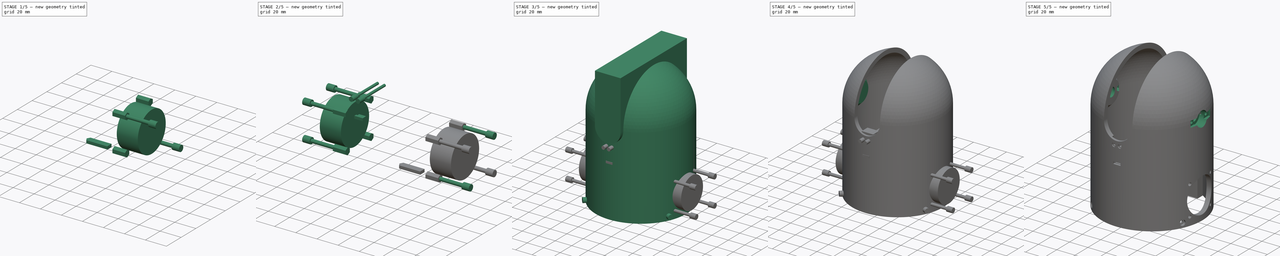
[diagram: build sequence overview — one tinted view per stage of 5, left to right]
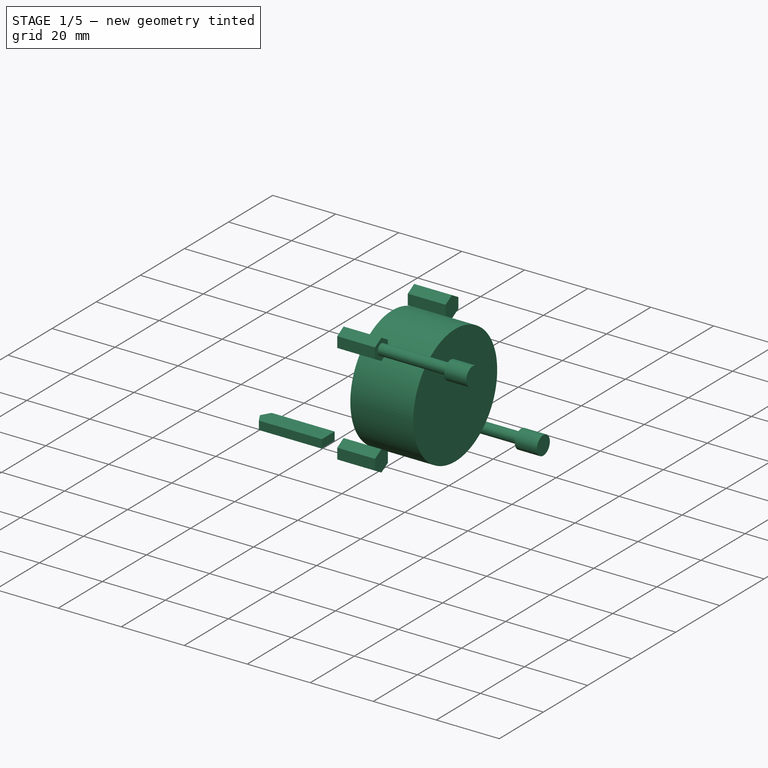
[diagram: stage 1 of 5 — iso view after this stage's code; geometry added in this stage tinted green]
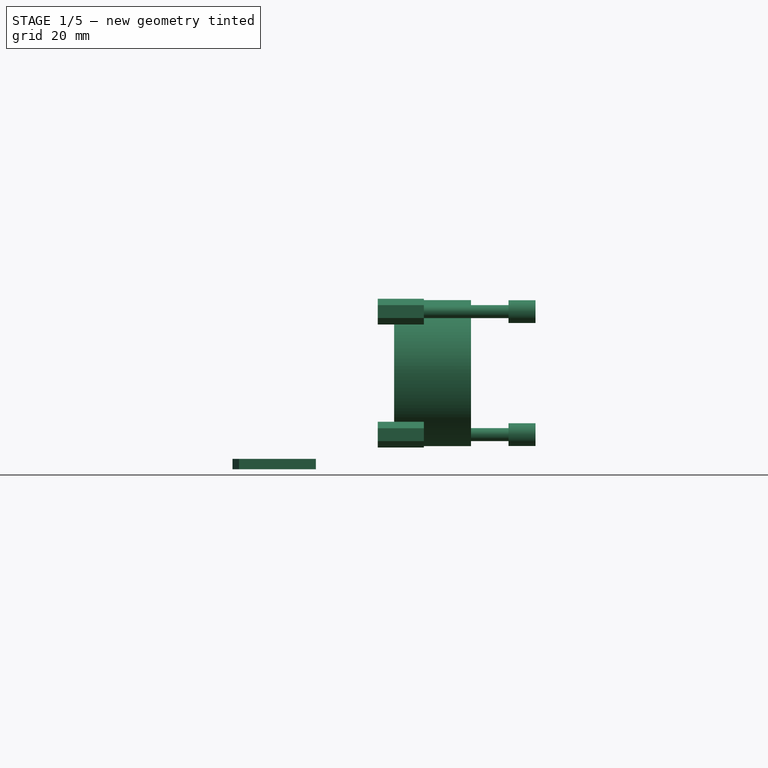
[diagram: stage 1 of 5 — front view after this stage's code; geometry added in this stage tinted green]
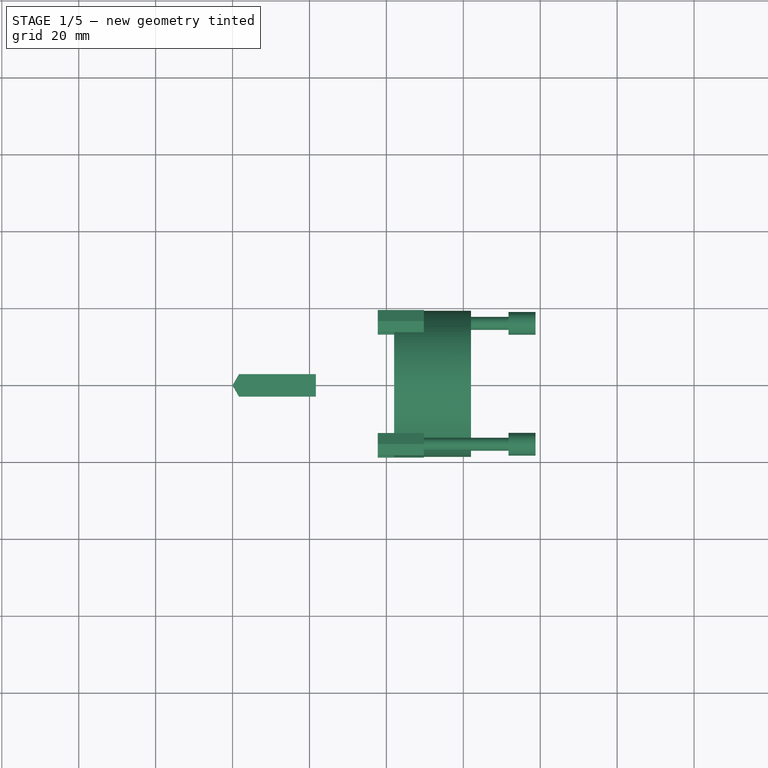
[diagram: stage 1 of 5 — top view after this stage's code; geometry added in this stage tinted green]
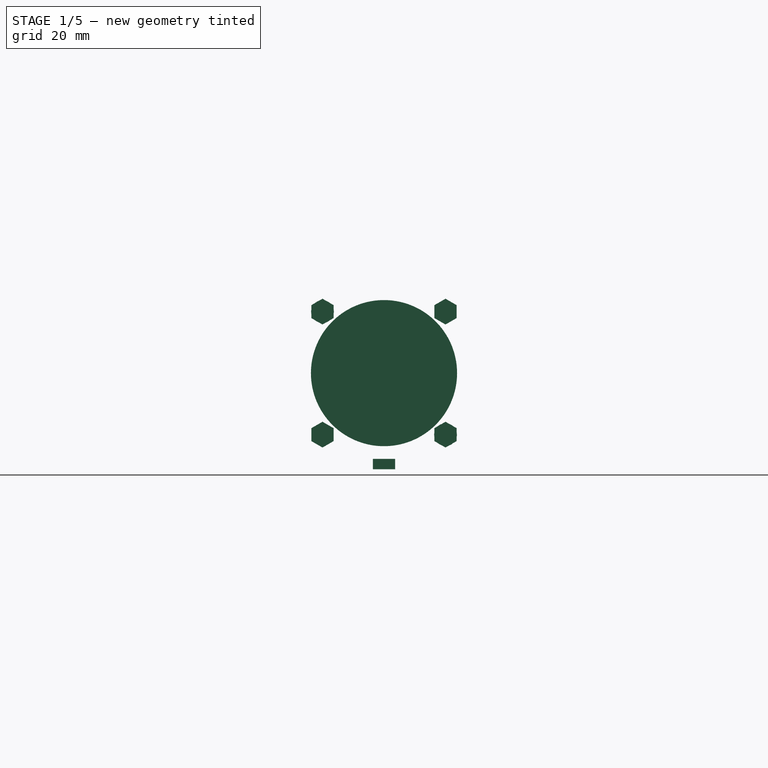
[diagram: stage 1 of 5 — right view after this stage's code; geometry added in this stage tinted green]
FCSTD DOCUMENT  (FreeCAD 0.16R6703 (Git))
Label: Art4Body
License: All rights reserved
LicenseURL: http://en.wikipedia.org/wiki/All_rights_reserved
objects: Part::FeaturePython×23, Part::MultiFuse×11, Part::Cut×8, Part::Cylinder×7, Sketcher::SketchObject×7, PartDesign::Pad×5, Part::Box×4, PartDesign::Revolution×2, Part::Prism×1, Part::Mirroring×1, App::DocumentObjectGroup×1
note: 76 computed .brp shape members not serialized (recipe doc carries the construction recipe); baked Part::Feature solids carry a one-line shape summary decoded from their .brp

FEATURE [Part::Cylinder] Cylinder  label="M3BoltHead"
  Angle = 360
  Height = 7
  Radius = 2.95
FEATURE [Part::Cylinder] Cylinder001  label="M3BoltBody"
  Angle = 360
  Height = 30
  Placement = pos=(0,0,6) rot=(0,0,1;0rad)
  Radius = 1.7
FEATURE [Part::MultiFuse] Fusion  label="M3Bolt"
  Shapes = -> [Cylinder001,Cylinder]
FEATURE [Part::Prism] Prism  label="M3Nut"
  Circumradius = 3.35
  Height = 12
  Polygon = 6
FEATURE [Part::FeaturePython] Clone444  label="Clone of M3Bolt100"  # Draft clone (typed FeaturePython)
  Objects = -> [Fusion]
  Placement = pos=(78.76,-15.9947,40.9948) rot=(0,-1,0;1.5708rad)
  Scale = (1,1,1)
FEATURE [Part::FeaturePython] Clone445  label="Clone of M3Bolt101"  # Draft clone (typed FeaturePython)
  Objects = -> [Fusion]
  Placement = pos=(78.76,15.9948,9.00524) rot=(0,-1,0;1.5708rad)
  Scale = (1,1,1)
FEATURE [Part::Cylinder] Cylinder1064  label="Cylinder022"
  Angle = 360
  Height = 20
  Placement = pos=(42,0,25) rot=(0.57735,0.57735,0.57735;2.0944rad)
  Radius = 19
FEATURE [Part::FeaturePython] Clone  label="Clone of M3Nut"  # Draft clone (typed FeaturePython)
  Objects = -> [Prism]
  Placement = pos=(49.76,15.9948,9.00524) rot=(0,-1,0;1.5708rad)
  Scale = (1,1,1)
FEATURE [Part::FeaturePython] Clone446  label="Clone of M3Nut007"  # Draft clone (typed FeaturePython)
  Objects = -> [Prism]
  Placement = pos=(49.76,-15.9947,9.00524) rot=(0,-1,0;1.5708rad)
  Scale = (1,1,1)
FEATURE [Part::FeaturePython] Clone447  label="Clone of M3Nut008"  # Draft clone (typed FeaturePython)
  Objects = -> [Prism]
  Placement = pos=(49.76,15.9948,40.9948) rot=(0,-1,0;1.5708rad)
  Scale = (1,1,1)
FEATURE [Part::FeaturePython] Clone448  label="Clone of M3Nut009"  # Draft clone (typed FeaturePython)
  Objects = -> [Prism]
  Placement = pos=(49.76,-15.9947,40.9948) rot=(0,-1,0;1.5708rad)
  Scale = (1,1,1)
FEATURE [Sketcher::SketchObject] Sketch003  label="M3NutHousingSketch"
  sketch-geometry (5):
    g0: LineSegment StartX=0 StartY=0 StartZ=0 EndX=1.67432 EndY=2.9 EndZ=0
    g1: LineSegment StartX=1.67432 StartY=2.9 StartZ=0 EndX=21.6743 EndY=2.9 EndZ=0
    g2: LineSegment StartX=21.6743 StartY=2.9 StartZ=0 EndX=21.6743 EndY=-2.9 EndZ=0
    g3: LineSegment StartX=21.6743 StartY=-2.9 StartZ=0 EndX=1.67432 EndY=-2.9 EndZ=0
    g4: LineSegment StartX=1.67432 StartY=-2.9 StartZ=0 EndX=0 EndY=0 EndZ=0
  constraints (14):
    c: Coincident(g-1,g0)
    c: Coincident(g0,g1)
    c: Horizontal(g1)
    c: Coincident(g1,g2)
    c: Vertical(g2)
    c: Coincident(g2,g3)
    c: Horizontal(g3)
    c: Coincident(g3,g4)
    c: Coincident(g4,g0)
    c: Equal(g3,g1)
    c: Equal(g4,g0)
    c: DistanceY(g2) = -5.8
    c: Angle(g-1,g0) = 1.0472
    c: DistanceX(g3) = -20
FEATURE [PartDesign::Pad] Pad002  label="M3NutHousing"
  Length = 2.7
  Length2 = 100
  Sketch = -> Sketch003
  Type = 0
FEATURE [App::DocumentObjectGroup] Group  label="Master"
  Group = -> [Fusion,Prism,Revolution003,Cylinder1003,Fusion062,Fusion158,Pad002]
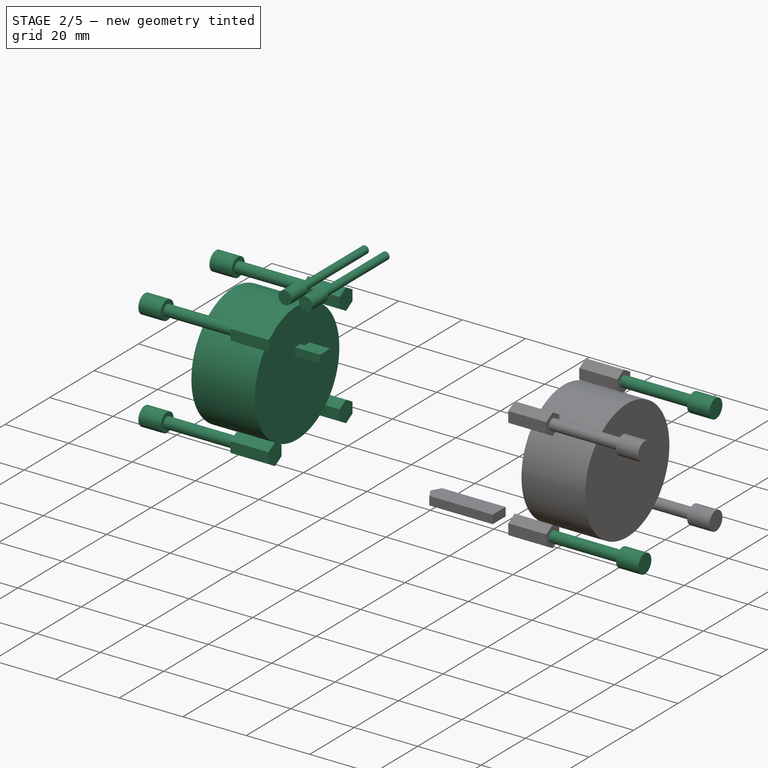
[diagram: stage 2 of 5 — iso view after this stage's code; geometry added in this stage tinted green]
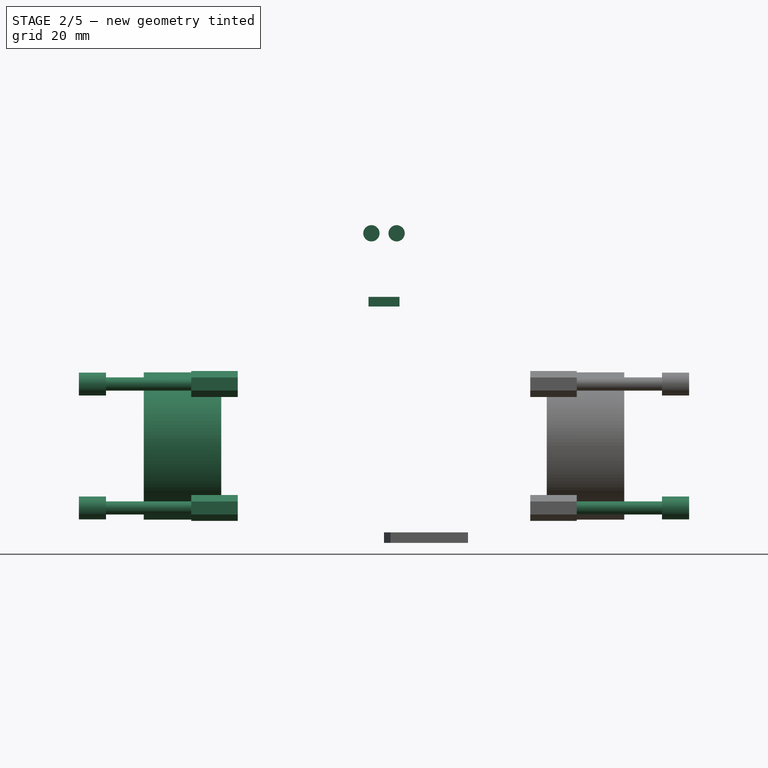
[diagram: stage 2 of 5 — front view after this stage's code; geometry added in this stage tinted green]
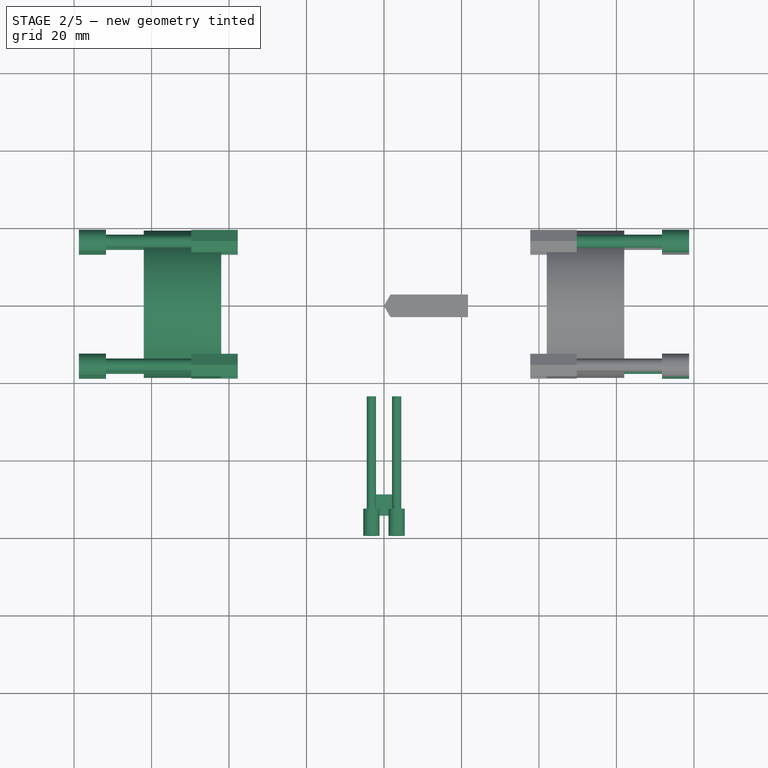
[diagram: stage 2 of 5 — top view after this stage's code; geometry added in this stage tinted green]
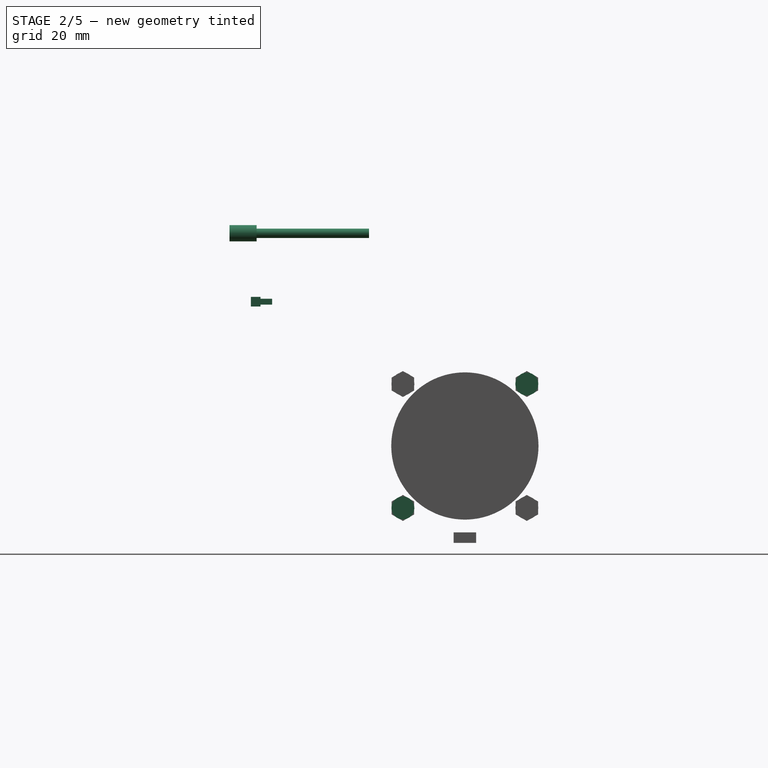
[diagram: stage 2 of 5 — right view after this stage's code; geometry added in this stage tinted green]
FEATURE [Part::Cylinder] Cylinder1061  label="M2BoltHead"
  Angle = 360
  Height = 7
  Radius = 2.1
FEATURE [Part::Cylinder] Cylinder1062  label="M2BoltBody"
  Angle = 360
  Height = 30
  Placement = pos=(0,0,6) rot=(0,0,1;0rad)
  Radius = 1.2
FEATURE [Part::MultiFuse] Fusion158  label="M2Bolt "
  Shapes = -> [Cylinder1062,Cylinder1061]
FEATURE [Part::FeaturePython] Clone438  label="Clone of M2Bolt 006"  # Draft clone (typed FeaturePython)
  Objects = -> [Fusion158]
  Placement = pos=(-3.25,-60.75,79.9) rot=(-1,0,0;1.5708rad)
  Scale = (1,1,1)
FEATURE [Part::FeaturePython] Clone439  label="Clone of M2Bolt 007"  # Draft clone (typed FeaturePython)
  Objects = -> [Fusion158]
  Placement = pos=(3.25,-60.75,79.9) rot=(-1,0,0;1.5708rad)
  Scale = (1,1,1)
FEATURE [Part::Box] Box270  label="Cube032"
  Height = 2.5
  Length = 8
  Width = 2.5
FEATURE [Part::Box] Box271  label="Cube033"
  Height = 1.5
  Length = 6.5
  Placement = pos=(0.75,2,0.5) rot=(0,0,1;0rad)
  Width = 3.5
FEATURE [Part::MultiFuse] Fusion168
  Placement = pos=(-4,-55.25,61) rot=(0,0,1;0rad)
  Shapes = -> [Box271,Box270]
FEATURE [Part::FeaturePython] Clone442  label="Clone of M3Bolt"  # Draft clone (typed FeaturePython)
  Objects = -> [Fusion]
  Placement = pos=(78.76,15.9948,40.9948) rot=(0,-1,0;1.5708rad)
  Scale = (1,1,1)
FEATURE [Part::FeaturePython] Clone443  label="Clone of M3Bolt099"  # Draft clone (typed FeaturePython)
  Objects = -> [Fusion]
  Placement = pos=(78.76,-15.9947,9.00524) rot=(0,-1,0;1.5708rad)
  Scale = (1,1,1)
FEATURE [Part::MultiFuse] Fusion169  label="FanHoles"
  Shapes = -> [Clone448,Clone444,Clone443,Clone445,Cylinder1064,Clone442,Clone,Clone446,Clone447]
FEATURE [Part::Mirroring] Part__Mirroring  label="FanHoles (Mirror #1)"
  Base = (0,0,0)
  Normal = (1,0,0)
  Source = -> Fusion169
FEATURE [Part::MultiFuse] Fusion170
  Shapes = -> [Fusion169,Part__Mirroring]
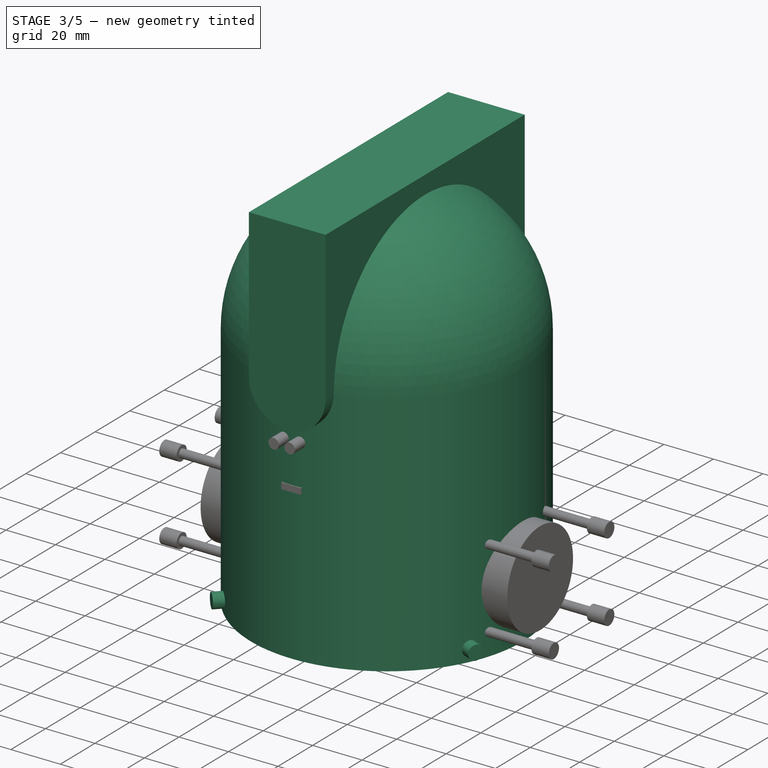
[diagram: stage 3 of 5 — iso view after this stage's code; geometry added in this stage tinted green]
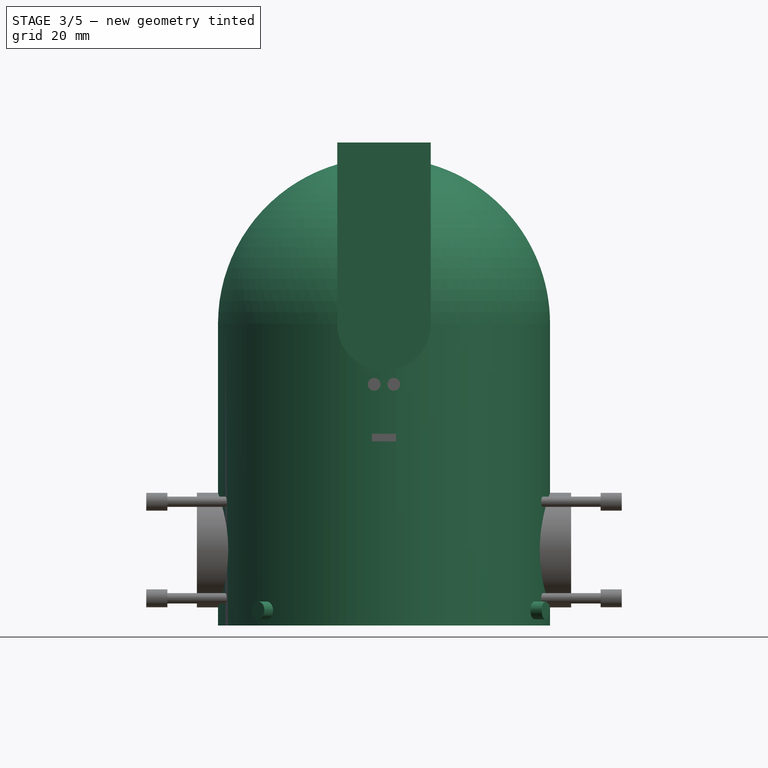
[diagram: stage 3 of 5 — front view after this stage's code; geometry added in this stage tinted green]
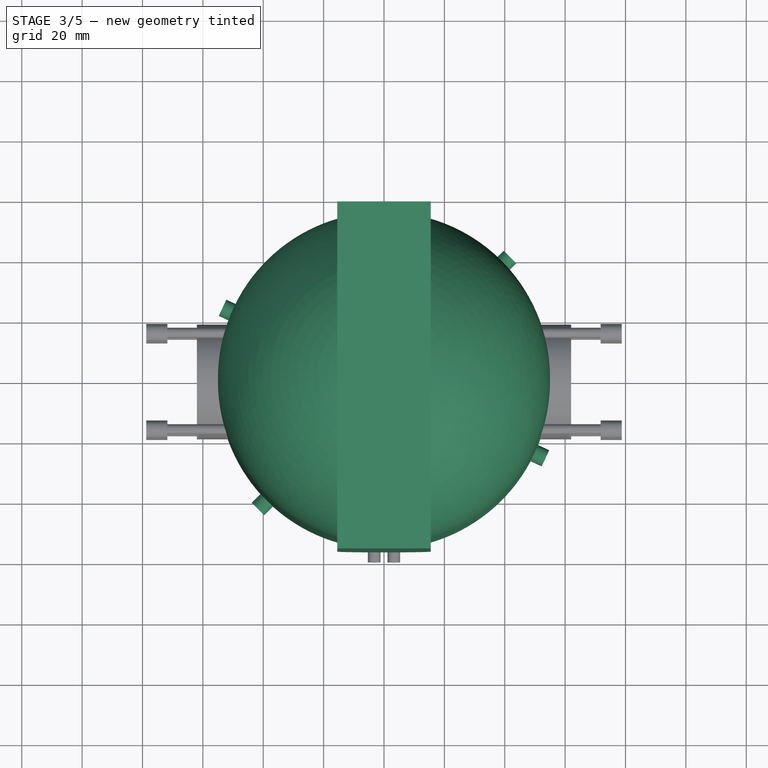
[diagram: stage 3 of 5 — top view after this stage's code; geometry added in this stage tinted green]
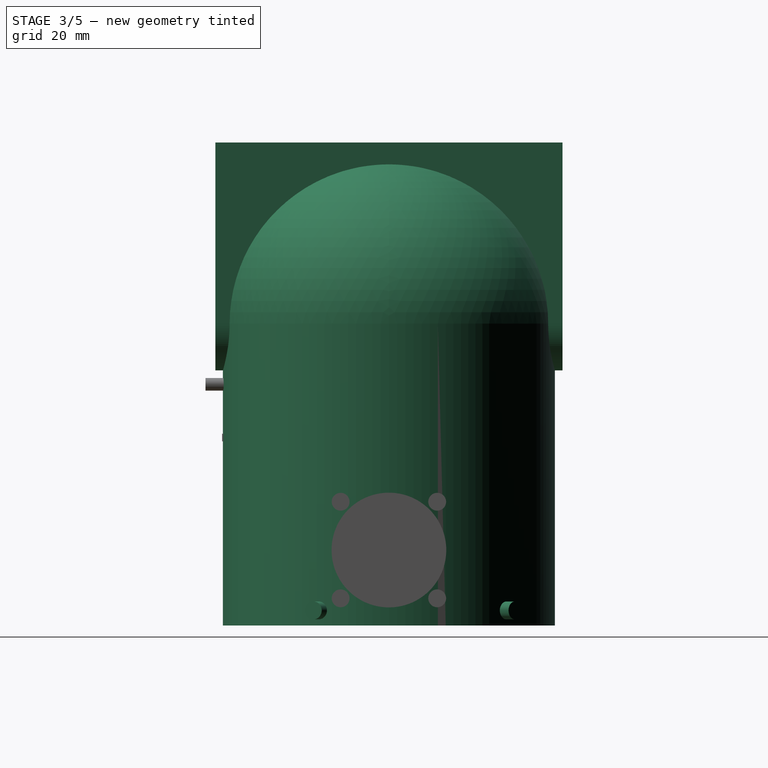
[diagram: stage 3 of 5 — right view after this stage's code; geometry added in this stage tinted green]
FEATURE [PartDesign::Revolution] Revolution012
  Angle = 360
  Axis = (0,0,1)
  Base = (0,0,0)
  Placement = pos=(0,0,0) rot=(1,0,0;1.5708rad)
  ReferenceAxis = -> Sketch051 [V_Axis]
  Reversed = true
  Sketch = -> Sketch051
FEATURE [Sketcher::SketchObject] Sketch052
  Placement = pos=(0,0,84.5) rot=(1,0,0;1.5708rad)
  sketch-geometry (4):
    g0: ArcOfCircle CenterX=0 CenterY=15.5 CenterZ=0 NormalX=0 NormalY=0 NormalZ=1 Radius=15.5 StartAngle=3.14159 EndAngle=6.28318
    g1: LineSegment StartX=15.5 StartY=15.5 StartZ=0 EndX=15.5 EndY=75.5 EndZ=0
    g2: LineSegment StartX=15.5 StartY=75.5 StartZ=0 EndX=-15.5 EndY=75.5 EndZ=0
    g3: LineSegment StartX=-15.5 StartY=75.5 StartZ=0 EndX=-15.5 EndY=15.5 EndZ=0
  constraints (13):
    c: PointOnObject(g0,g-2)
    c: PointOnObject(g-1,g0)
    c: Radius(g0) = 15.5
    c: Coincident(g1,g2)
    c: Coincident(g2,g3)
    c: Horizontal(g2)
    c: Vertical(g1)
    c: Vertical(g3)
    c: Coincident(g1,g0)
    c: Tangent(g1,g0)
    c: Tangent(g0,g3)
    c: Coincident(g0,g3)
    c: DistanceY(g1) = 60
FEATURE [PartDesign::Pad] Pad035
  Length = 115
  Length2 = 100
  Midplane = true
  Placement = pos=(0,0,84.5) rot=(1,0,0;1.5708rad)
  Sketch = -> Sketch052
  Type = 0
FEATURE [Sketcher::SketchObject] Sketch053
  sketch-geometry (24):
    g0: ArcOfCircle CenterX=0 CenterY=0 CenterZ=0 NormalX=0 NormalY=0 NormalZ=1 Radius=50.5 StartAngle=2.15613 EndAngle=2.4501
    g1: LineSegment StartX=-27.9 StartY=42.0932 StartZ=0 EndX=-27.9 EndY=27 EndZ=0
    g2: LineSegment StartX=-27.9 StartY=27 StartZ=0 EndX=-38.9 EndY=27 EndZ=0
    g3: LineSegment StartX=-38.9 StartY=27 StartZ=0 EndX=-38.9 EndY=32.2031 EndZ=0
    g4: LineSegment StartX=25.1 StartY=43.8205 StartZ=0 EndX=25.1 EndY=35 EndZ=0
    g5: LineSegment StartX=25.1 StartY=35 StartZ=0 EndX=14.1 EndY=35 EndZ=0
    g6: LineSegment StartX=14.1 StartY=35 StartZ=0 EndX=14.1 EndY=48.4916 EndZ=0
    g7: LineSegment StartX=27.9 StartY=-27 StartZ=0 EndX=38.9 EndY=-27 EndZ=0
    g8: LineSegment StartX=38.9 StartY=-27 StartZ=0 EndX=38.9 EndY=-32.2031 EndZ=0
    g9: LineSegment StartX=27.9 StartY=-42.0932 StartZ=0 EndX=27.9 EndY=-27 EndZ=0
    g10: LineSegment StartX=-25.1 StartY=-35 StartZ=0 EndX=-14.1 EndY=-35 EndZ=0
    g11: LineSegment StartX=-14.1 StartY=-35 StartZ=0 EndX=-14.1 EndY=-48.4916 EndZ=0
    g12: LineSegment StartX=-25.1 StartY=-43.8205 StartZ=0 EndX=-25.1 EndY=-35 EndZ=0
    g13: LineSegment [constr] StartX=14.1 StartY=35 StartZ=0 EndX=14.1 EndY=0 EndZ=0
    g14: LineSegment [constr] StartX=14.1 StartY=0 StartZ=0 EndX=0 EndY=0 EndZ=0
    g15: LineSegment [constr] StartX=-27.9 StartY=27 StartZ=0 EndX=-27.9 EndY=0 EndZ=0
    g16: LineSegment [constr] StartX=-27.9 StartY=0 StartZ=0 EndX=0 EndY=0 EndZ=0
    g17: LineSegment [constr] StartX=0 StartY=0 StartZ=0 EndX=27.9 EndY=0 EndZ=0
    g18: LineSegment [constr] StartX=27.9 StartY=0 StartZ=0 EndX=27.9 EndY=-27 EndZ=0
    g19: LineSegment [constr] StartX=0 StartY=0 StartZ=0 EndX=-14.1 EndY=0 EndZ=0
    g20: LineSegment [constr] StartX=-14.1 StartY=0 StartZ=0 EndX=-14.1 EndY=-35 EndZ=0
    g21: ArcOfCircle CenterX=0 CenterY=0 CenterZ=0 NormalX=0 NormalY=0 NormalZ=1 Radius=50.5 StartAngle=4.19222 EndAngle=4.42942
    g22: ArcOfCircle CenterX=0 CenterY=0 CenterZ=0 NormalX=0 NormalY=0 NormalZ=1 Radius=50.5 StartAngle=5.29772 EndAngle=5.5917
    g23: ArcOfCircle CenterX=0 CenterY=0 CenterZ=0 NormalX=0 NormalY=0 NormalZ=1 Radius=50.5 StartAngle=1.05062 EndAngle=1.28783
  constraints (69):
    c: Coincident(g0,g-1)
    c: Radius(g0) = 50.5
    c: Coincident(g1,g2)
    c: Coincident(g2,g3)
    c: Horizontal(g2)
    c: Vertical(g1)
    c: Vertical(g3)
    c: Coincident(g4,g5)
    c: Coincident(g5,g6)
    c: Horizontal(g5)
    c: Vertical(g4)
    c: Vertical(g6)
    c: DistanceX(g-1,g1) = -27.9
    c: DistanceX(g2) = -11
    c: PointOnObject(g4,g0)
    c: Coincident(g0,g1)
    c: Coincident(g23,g6)
    c: Coincident(g7,g8)
    c: Coincident(g9,g7)
    c: Horizontal(g7)
    c: Vertical(g8)
    c: Vertical(g9)
    c: Coincident(g10,g11)
    c: Coincident(g12,g10)
    c: Horizontal(g10)
    c: Vertical(g11)
    c: Vertical(g12)
    c: Coincident(g13,g5)
    c: PointOnObject(g13,g-1)
    c: Vertical(g13)
    c: Coincident(g14,g13)
    c: Coincident(g14,g-1)
    c: DistanceY(g13) = -35
    c: DistanceX(g14) = -14.1
    c: PointOnObject(g15,g-1)
    c: Vertical(g15)
    c: Coincident(g16,g15)
    c: Coincident(g16,g-1)
    c: Coincident(g15,g1)
    c: DistanceY(g15) = -27
    c: Equal(g2,g5)
    c: Equal(g5,g7)
    c: Equal(g7,g10)
    c: Coincident(g17,g-1)
    c: PointOnObject(g17,g14)
    c: Coincident(g18,g17)
    c: Coincident(g18,g7)
    c: Vertical(g18)
    c: Equal(g17,g16)
    c: Equal(g18,g15)
    c: Coincident(g-1,g19)
    c: PointOnObject(g19,g-1)
    c: Coincident(g19,g20)
    c: Coincident(g20,g10)
    c: Vertical(g20)
    c: Equal(g19,g14)
    c: Equal(g20,g13)
    c: Equal(g0,g21)
    c: Coincident(g0,g3)
    c: Coincident(g0,g21)
    c: Coincident(g12,g21)
    c: Equal(g21,g22)
    c: Coincident(g21,g11)
    c: Coincident(g21,g22)
    c: Equal(g22,g23)
    c: PointOnObject(g23,g4)
    c: Coincident(g22,g23)
    c: Coincident(g8,g22)
    c: Coincident(g9,g22)
FEATURE [PartDesign::Pad] Pad036
  Length = 55
  Length2 = 100
  Sketch = -> Sketch053
  Type = 0
FEATURE [Sketcher::SketchObject] Sketch054
  sketch-geometry (20):
    g0: LineSegment StartX=-32 StartY=39.5 StartZ=0 EndX=-32 EndY=29.5 EndZ=0
    g1: LineSegment StartX=-32 StartY=29.5 StartZ=0 EndX=-26.0412 EndY=34.5 EndZ=0
    g2: LineSegment StartX=-26.0412 StartY=34.5 StartZ=0 EndX=-32 EndY=39.5 EndZ=0
    g3: LineSegment StartX=12.0412 StartY=42.5 StartZ=0 EndX=18 EndY=47.5 EndZ=0
    g4: LineSegment StartX=18 StartY=47.5 StartZ=0 EndX=18 EndY=37.5 EndZ=0
    g5: LineSegment StartX=18 StartY=37.5 StartZ=0 EndX=12.0412 EndY=42.5 EndZ=0
    g6: LineSegment [constr] StartX=0 StartY=0 StartZ=0 EndX=-32 EndY=0 EndZ=0
    g7: LineSegment [constr] StartX=-32 StartY=0 StartZ=0 EndX=-32 EndY=29.5 EndZ=0
    g8: LineSegment [constr] StartX=0 StartY=0 StartZ=0 EndX=18 EndY=0 EndZ=0
    g9: LineSegment [constr] StartX=18 StartY=0 StartZ=0 EndX=18 EndY=37.5 EndZ=0
    g10: LineSegment [constr] StartX=0 StartY=0 StartZ=0 EndX=-18 EndY=0 EndZ=0
    g11: LineSegment [constr] StartX=-18 StartY=0 StartZ=0 EndX=-18 EndY=-37.5 EndZ=0
    g12: LineSegment [constr] StartX=0 StartY=0 StartZ=0 EndX=32 EndY=0 EndZ=0
    g13: LineSegment [constr] StartX=32 StartY=0 StartZ=0 EndX=32 EndY=-29.5 EndZ=0
    g14: LineSegment StartX=-18 StartY=-37.5 StartZ=0 EndX=-18 EndY=-47.5 EndZ=0
    g15: LineSegment StartX=-18 StartY=-47.5 StartZ=0 EndX=-12.0412 EndY=-42.5 EndZ=0
    g16: LineSegment StartX=-12.0412 StartY=-42.5 StartZ=0 EndX=-18 EndY=-37.5 EndZ=0
    g17: LineSegment StartX=32 StartY=-29.5 StartZ=0 EndX=32 EndY=-39.5 EndZ=0
    g18: LineSegment StartX=32 StartY=-39.5 StartZ=0 EndX=26.0412 EndY=-34.5 EndZ=0
    g19: LineSegment StartX=26.0412 StartY=-34.5 StartZ=0 EndX=32 EndY=-29.5 EndZ=0
  constraints (56):
    c: Vertical(g0)
    c: Coincident(g0,g1)
    c: Coincident(g2,g0)
    c: DistanceY(g0) = -10
    c: Angle(g1,g0) = 0.872665
    c: Angle(g0,g2) = 0.872665
    c: Coincident(g2,g1)
    c: Coincident(g3,g4)
    c: Vertical(g4)
    c: Coincident(g4,g5)
    c: Coincident(g5,g3)
    c: Equal(g4,g0)
    c: Angle(g4,g5) = 0.872665
    c: Angle(g3,g4) = 0.872665
    c: Coincident(g-1,g6)
    c: PointOnObject(g6,g-1)
    c: Coincident(g6,g7)
    c: Coincident(g7,g0)
    c: Vertical(g7)
    c: DistanceX(g6) = -32
    c: DistanceY(g7) = 29.5
    c: Coincident(g-1,g8)
    c: Horizontal(g8)
    c: Coincident(g8,g9)
    c: Vertical(g9)
    c: Coincident(g4,g9)
    c: DistanceX(g8) = 18
    c: DistanceY(g9) = 37.5
    c: Coincident(g10,g-1)
    c: Coincident(g11,g10)
    c: Vertical(g11)
    c: Coincident(g12,g-1)
    c: PointOnObject(g12,g-1)
    c: Vertical(g13)
    c: Equal(g13,g7)
    c: Coincident(g13,g12)
    c: Equal(g12,g6)
    c: Equal(g10,g8)
    c: Horizontal(g10)
    c: Equal(g11,g9)
    c: Coincident(g11,g14)
    c: Vertical(g14)
    c: Coincident(g14,g15)
    c: Coincident(g15,g16)
    c: Coincident(g16,g14)
    c: Coincident(g13,g17)
    c: Vertical(g17)
    c: Coincident(g17,g18)
    c: Coincident(g18,g19)
    c: Coincident(g19,g17)
    c: Angle(g15,g14) = 0.872665
    c: Angle(g14,g16) = 0.872665
    c: Equal(g14,g17)
    c: Equal(g17,g4)
    c: Angle(g17,g18) = 0.872665
    c: Angle(g19,g17) = 0.872665
FEATURE [PartDesign::Pad] Pad037
  Length = 55
  Length2 = 100
  Sketch = -> Sketch054
  Type = 0
FEATURE [Sketcher::SketchObject] Sketch055
  sketch-geometry (23):
    g0: LineSegment StartX=-24.1 StartY=45.35 StartZ=0 EndX=-19.1 EndY=45.35 EndZ=0
    g1: LineSegment StartX=-19.1 StartY=45.35 StartZ=0 EndX=-19.1 EndY=40.35 EndZ=0
    g2: LineSegment StartX=-19.1 StartY=40.35 StartZ=0 EndX=-24.1 EndY=40.35 EndZ=0
    g3: LineSegment StartX=-27.9 StartY=43 StartZ=0 EndX=-24.1 EndY=45.35 EndZ=0
    g4: LineSegment StartX=-24.1 StartY=40.35 StartZ=0 EndX=-24.1 EndY=35.35 EndZ=0
    g5: LineSegment StartX=-24.1 StartY=35.35 StartZ=0 EndX=-27.9 EndY=35.35 EndZ=0
    g6: LineSegment StartX=-27.9 StartY=35.35 StartZ=0 EndX=-27.9 EndY=43 EndZ=0
    g7: LineSegment [constr] StartX=-24.1 StartY=45.35 StartZ=0 EndX=-24.1 EndY=0 EndZ=0
    g8: LineSegment [constr] StartX=-24.1 StartY=0 StartZ=0 EndX=0 EndY=0 EndZ=0
    g9: Circle [constr] CenterX=0 CenterY=0 CenterZ=0 NormalX=0 NormalY=0 NormalZ=1 Radius=50
    g10: LineSegment [constr] StartX=0 StartY=0 StartZ=0 EndX=-27.9 EndY=0 EndZ=0
    g11: LineSegment [constr] StartX=-27.9 StartY=0 StartZ=0 EndX=-27.9 EndY=43 EndZ=0
    g12: LineSegment [constr] StartX=0 StartY=0 StartZ=0 EndX=24.1 EndY=0 EndZ=0
    g13: LineSegment StartX=27.9 StartY=-35.35 StartZ=0 EndX=24.1 EndY=-35.35 EndZ=0
    g14: LineSegment StartX=24.1 StartY=-35.35 StartZ=0 EndX=24.1 EndY=-40.35 EndZ=0
    g15: LineSegment StartX=24.1 StartY=-40.35 StartZ=0 EndX=19.1 EndY=-40.35 EndZ=0
    g16: LineSegment StartX=19.1 StartY=-40.35 StartZ=0 EndX=19.1 EndY=-45.35 EndZ=0
    g17: LineSegment StartX=19.1 StartY=-45.35 StartZ=0 EndX=24.1 EndY=-45.35 EndZ=0
    g18: LineSegment StartX=27.9 StartY=-43 StartZ=0 EndX=27.9 EndY=-35.35 EndZ=0
    g19: LineSegment [constr] StartX=0 StartY=0 StartZ=0 EndX=27.9 EndY=0 EndZ=0
    g20: LineSegment StartX=24.1 StartY=-45.35 StartZ=0 EndX=27.9 EndY=-43 EndZ=0
    g21: LineSegment [constr] StartX=27.9 StartY=-43 StartZ=0 EndX=27.9 EndY=0 EndZ=0
    g22: LineSegment [constr] StartX=24.1 StartY=-45.35 StartZ=0 EndX=24.1 EndY=0 EndZ=0
  constraints (64):
    c: Coincident(g0,g1)
    c: Coincident(g1,g2)
    c: Horizontal(g0)
    c: Horizontal(g2)
    c: Vertical(g1)
    c: Coincident(g4,g5)
    c: Coincident(g5,g6)
    c: Coincident(g6,g3)
    c: Horizontal(g5)
    c: Vertical(g4)
    c: Vertical(g6)
    c: Coincident(g7,g0)
    c: PointOnObject(g7,g-1)
    c: Vertical(g7)
    c: Coincident(g8,g7)
    c: Coincident(g8,g-1)
    c: DistanceY(g7) = -45.35
    c: Coincident(g9,g-1)
    c: Radius(g9) = 50
    c: DistanceX(g8) = 24.1
    c: Coincident(g10,g-1)
    c: Coincident(g11,g10)
    c: Coincident(g11,g3)
    c: Vertical(g11)
    c: DistanceX(g10) = -27.9
    c: Horizontal(g10)
    c: DistanceX(g2) = -5
    c: DistanceY(g1) = -5
    c: DistanceY(g4) = -5
    c: DistanceY(g11) = 43
    c: Coincident(g4,g2)
    c: Coincident(g3,g0)
    c: DistanceX(g5) = -3.8
    c: Coincident(g-1,g12)
    c: PointOnObject(g12,g-1)
    c: Coincident(g13,g14)
    c: Vertical(g14)
    c: Coincident(g14,g15)
    c: Horizontal(g15)
    c: Coincident(g15,g16)
    c: Vertical(g16)
    c: Coincident(g16,g17)
    c: Coincident(g18,g13)
    c: Horizontal(g17)
    c: Vertical(g18)
    c: Horizontal(g13)
    c: Equal(g13,g5)
    c: Equal(g4,g14)
    c: Equal(g12,g8)
    c: Coincident(g-1,g19)
    c: Horizontal(g19)
    c: Equal(g19,g10)
    c: Coincident(g20,g17)
    c: Coincident(g20,g18)
    c: Coincident(g21,g18)
    c: Coincident(g21,g19)
    c: Coincident(g22,g17)
    c: Coincident(g22,g12)
    c: Vertical(g22)
    c: Vertical(g21)
    c: Equal(g22,g7)
    c: Equal(g21,g11)
    c: Equal(g2,g15)
    c: Equal(g16,g1)
FEATURE [PartDesign::Pad] Pad038
  Length = 55
  Length2 = 100
  Sketch = -> Sketch055
  Type = 0
FEATURE [Part::FeaturePython] Clone281  label="Clone of M3Bolt095"  # Draft clone (typed FeaturePython)
  Objects = -> [Fusion]
  Placement = pos=(-41.7193,-41.7193,5) rot=(-0.357407,0.862856,0.357407;1.71777rad)
  Scale = (1,1,1)
FEATURE [Part::FeaturePython] Clone282  label="Clone of M3Bolt096"  # Draft clone (typed FeaturePython)
  Objects = -> [Fusion]
  Placement = pos=(41.7193,41.7193,5) rot=(0.678598,0.281085,-0.678598;2.59356rad)
  Scale = (1,1,1)
FEATURE [Part::FeaturePython] Clone283  label="Clone of M3Bolt097"  # Draft clone (typed FeaturePython)
  Objects = -> [Fusion]
  Placement = pos=(-53.4722,24.9345,5) rot=(0.211541,0.954202,-0.211541;1.61766rad)
  Scale = (1,1,1)
FEATURE [Part::FeaturePython] Clone284  label="Clone of M3Bolt098"  # Draft clone (typed FeaturePython)
  Objects = -> [Fusion]
  Placement = pos=(53.4722,-24.9345,5) rot=(0.698576,-0.15487,-0.698575;3.44889rad)
  Scale = (1,1,1)
FEATURE [Part::MultiFuse] Fusion099
  Shapes = -> [Clone284,Clone281,Clone282,Clone283]
FEATURE [Part::Box] Box269  label="Cube031"
  Height = 15
  Length = 14
  Placement = pos=(-7,-52.25,72) rot=(0,0,1;0rad)
  Width = 10
FEATURE [Part::MultiFuse] Fusion164
  Shapes = -> [Clone438,Clone439,Box269]
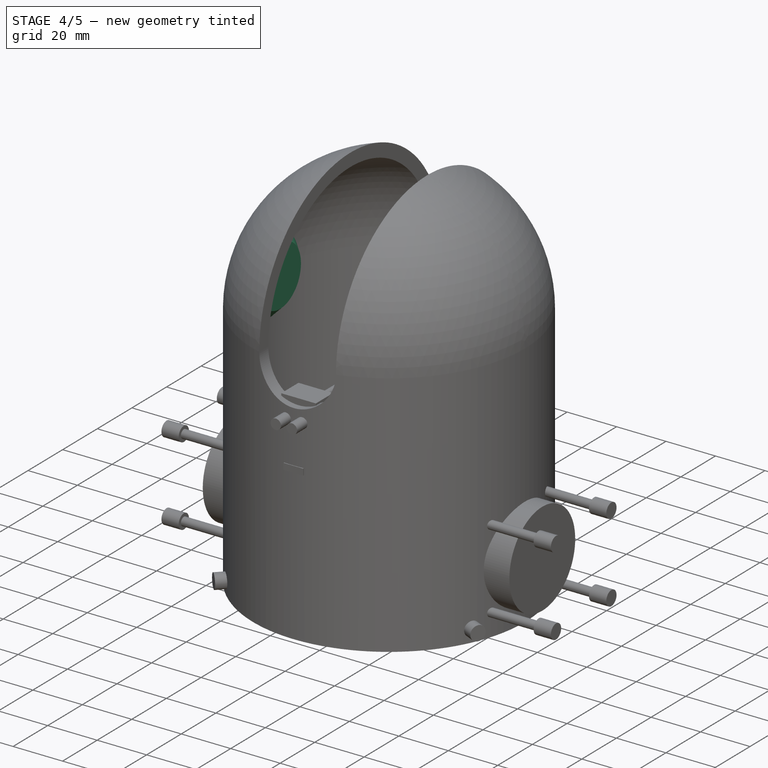
[diagram: stage 4 of 5 — iso view after this stage's code; geometry added in this stage tinted green]
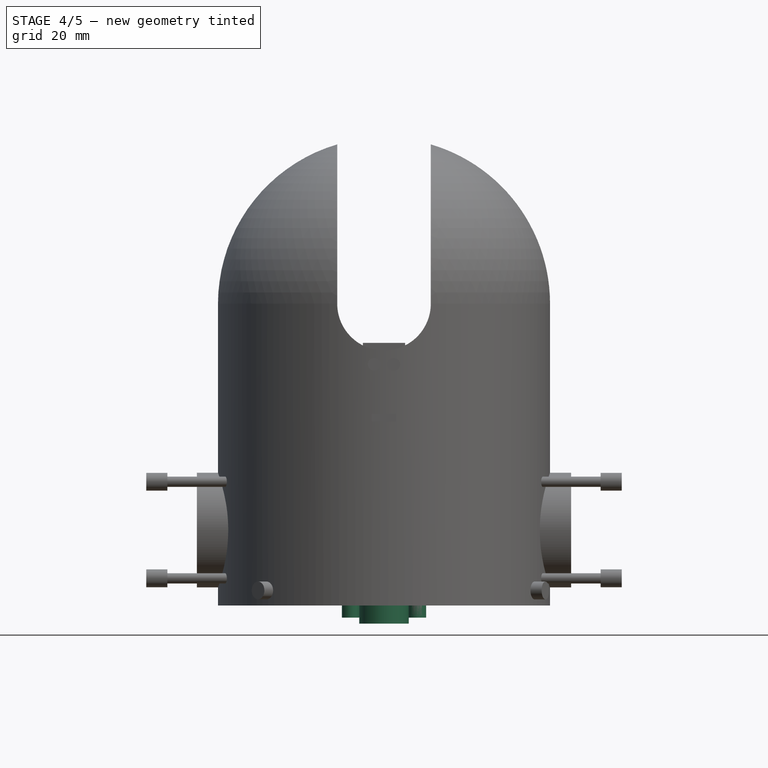
[diagram: stage 4 of 5 — front view after this stage's code; geometry added in this stage tinted green]
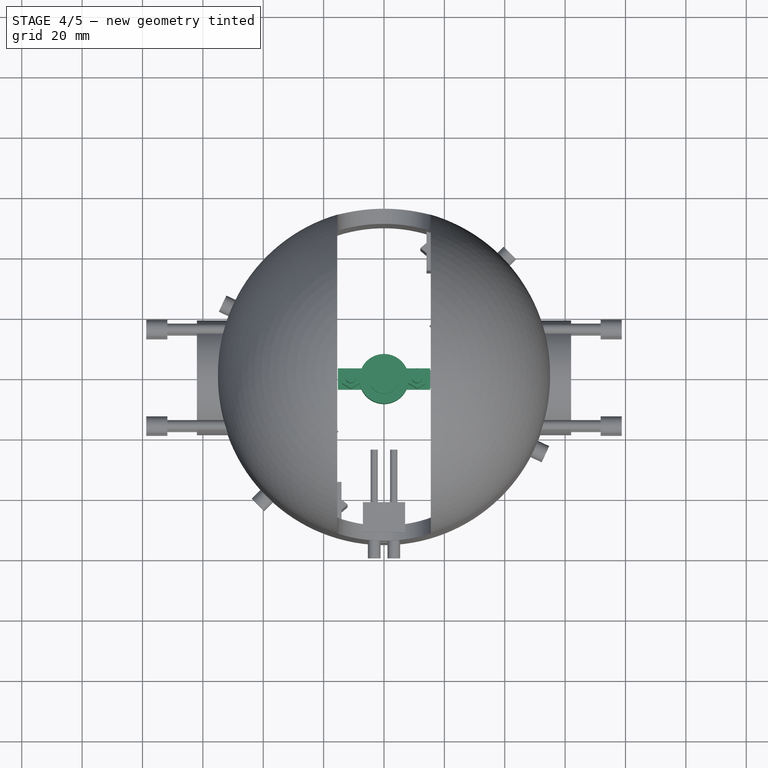
[diagram: stage 4 of 5 — top view after this stage's code; geometry added in this stage tinted green]
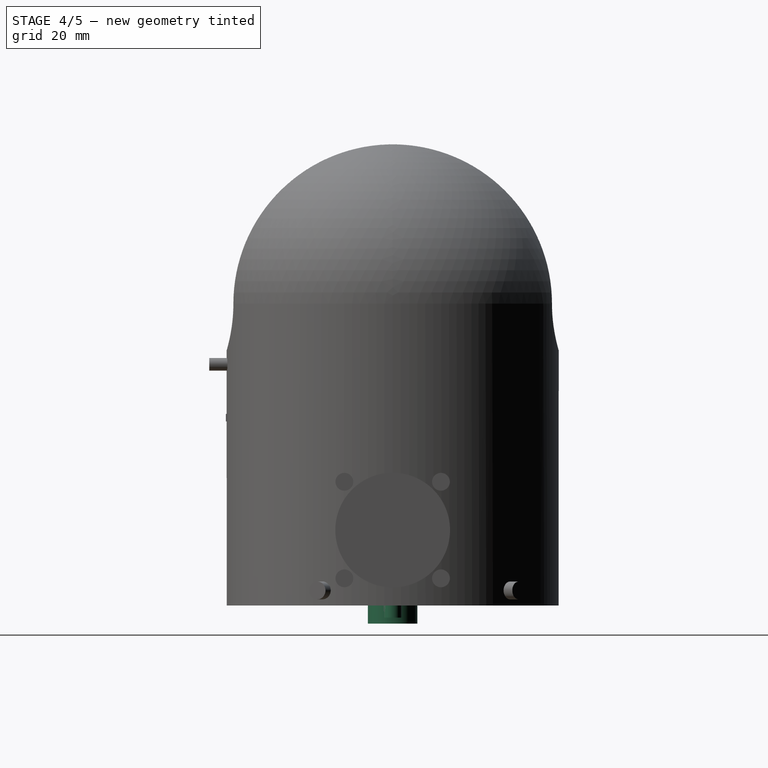
[diagram: stage 4 of 5 — right view after this stage's code; geometry added in this stage tinted green]
FEATURE [Sketcher::SketchObject] Sketch016
  sketch-geometry (4):
    g0: LineSegment StartX=0 StartY=0 StartZ=0 EndX=0 EndY=18 EndZ=0
    g1: LineSegment StartX=0 StartY=18 StartZ=0 EndX=6 EndY=12 EndZ=0
    g2: LineSegment StartX=6 StartY=12 StartZ=0 EndX=6 EndY=0 EndZ=0
    g3: LineSegment StartX=0 StartY=0 StartZ=0 EndX=6 EndY=0 EndZ=0
  constraints (11):
    c: Coincident(g0,g-1)
    c: Vertical(g0)
    c: Coincident(g1,g0)
    c: Coincident(g2,g1)
    c: PointOnObject(g2,g-1)
    c: Vertical(g2)
    c: Coincident(g3,g-1)
    c: Coincident(g3,g2)
    c: DistanceY(g2) = -12
    c: DistanceX(g3) = 6
    c: Angle(g1,g-1) = 0.785398
FEATURE [PartDesign::Revolution] Revolution003  label="625ZZBearingHousingNoHoles"
  Angle = 360
  Axis = (1,0,0)
  Base = (0,0,0)
  ReferenceAxis = -> Sketch016 [H_Axis]
  Sketch = -> Sketch016
FEATURE [Part::Cylinder] Cylinder1003  label="Bearing625ZZMaster"
  Angle = 360
  Height = 15
  Radius = 8.2
FEATURE [Part::FeaturePython] Clone136  label="Clone of Bearing625ZZMaster"  # Draft clone (typed FeaturePython)
  Objects = -> [Cylinder1003]
  Placement = pos=(0,0,-6) rot=(0,0,1;0rad)
  Scale = (1,1,1)
FEATURE [Part::Cylinder] Cylinder1015  label="Cylinder021"
  Angle = 360
  Height = 10
  Placement = pos=(0,0,4) rot=(0,0,1;0rad)
  Radius = 5
FEATURE [Part::Box] Box251  label="Cube015"
  Height = 4
  Length = 30.6
  Placement = pos=(-15.3,-3.5,0) rot=(0,0,1;0rad)
  Width = 7
FEATURE [Part::FeaturePython] Clone137  label="Clone of M3Bolt039"  # Draft clone (typed FeaturePython)
  Objects = -> [Fusion]
  Placement = pos=(11,0,-4) rot=(0,0,1;0rad)
  Scale = (1,1,1)
FEATURE [Part::FeaturePython] Clone138  label="Clone of M3Bolt040"  # Draft clone (typed FeaturePython)
  Objects = -> [Fusion]
  Placement = pos=(-11,0,-4) rot=(0,0,1;0rad)
  Scale = (1,1,1)
FEATURE [Part::FeaturePython] Clone139  label="Clone of M3Nut005"  # Draft clone (typed FeaturePython)
  Objects = -> [Prism]
  Placement = pos=(11,0,7) rot=(0,0,1;0.523599rad)
  Scale = (1,1,1)
FEATURE [Part::FeaturePython] Clone140  label="Clone of M3Nut006"  # Draft clone (typed FeaturePython)
  Objects = -> [Prism]
  Placement = pos=(-11,0,7) rot=(0,0,1;0.523599rad)
  Scale = (1,1,1)
FEATURE [Sketcher::SketchObject] Sketch051
  Placement = pos=(0,0,0) rot=(1,0,0;1.5708rad)
  sketch-geometry (6):
    g0: LineSegment StartX=50 StartY=100 StartZ=0 EndX=50 EndY=0 EndZ=0
    g1: LineSegment StartX=50 StartY=0 StartZ=0 EndX=55 EndY=0 EndZ=0
    g2: LineSegment StartX=55 StartY=0 StartZ=0 EndX=55 EndY=100 EndZ=0
    g3: ArcOfCircle CenterX=0 CenterY=100 CenterZ=0 NormalX=0 NormalY=0 NormalZ=1 Radius=50 StartAngle=0 EndAngle=1.5708
    g4: ArcOfCircle CenterX=0 CenterY=100 CenterZ=0 NormalX=0 NormalY=0 NormalZ=1 Radius=55 StartAngle=0 EndAngle=1.5708
    g5: LineSegment StartX=0 StartY=150 StartZ=0 EndX=0 EndY=155 EndZ=0
  constraints (19):
    c: PointOnObject(g1,g-1)
    c: PointOnObject(g3,g-2)
    c: PointOnObject(g3,g-2)
    c: PointOnObject(g4,g-2)
    c: Coincident(g5,g3)
    c: Coincident(g5,g4)
    c: Coincident(g1,g2)
    c: Coincident(g2,g4)
    c: Vertical(g2)
    c: Coincident(g1,g0)
    c: Coincident(g0,g3)
    c: Vertical(g0)
    c: Horizontal(g1)
    c: Radius(g3) = 50
    c: Radius(g4) = 55
    c: Equal(g0,g2)
    c: Coincident(g4,g3)
    c: DistanceY(g-1,g3) = 100
    c: DistanceY(g2) = 100
FEATURE [Part::FeaturePython] Clone277  label="Clone of 625ZZBearingHousingNoHoles003"  # Draft clone (typed FeaturePython)
  Objects = -> [Revolution003]
  Placement = pos=(-50.0001,0,100) rot=(0,0,1;0rad)
  Scale = (1,1,1)
FEATURE [Part::FeaturePython] Clone278  label="Clone of 625ZZBearingHousingNoHoles004"  # Draft clone (typed FeaturePython)
  Objects = -> [Revolution003]
  Placement = pos=(50.0001,0,100) rot=(0,0,1;3.14159rad)
  Scale = (1,1,1)
FEATURE [Part::Cut] Cut081  label="Cut155"
  Base = -> Revolution012
  Tool = -> Pad035
FEATURE [Part::MultiFuse] Fusion097
  Shapes = -> [Clone277,Clone278,Cut081]
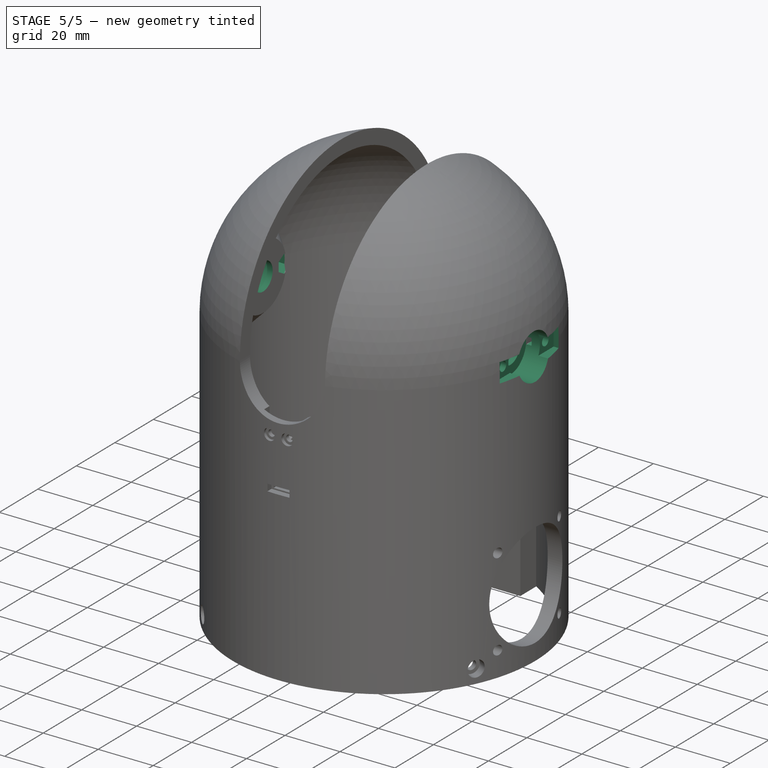
[diagram: stage 5 of 5 — iso view after this stage's code; geometry added in this stage tinted green]
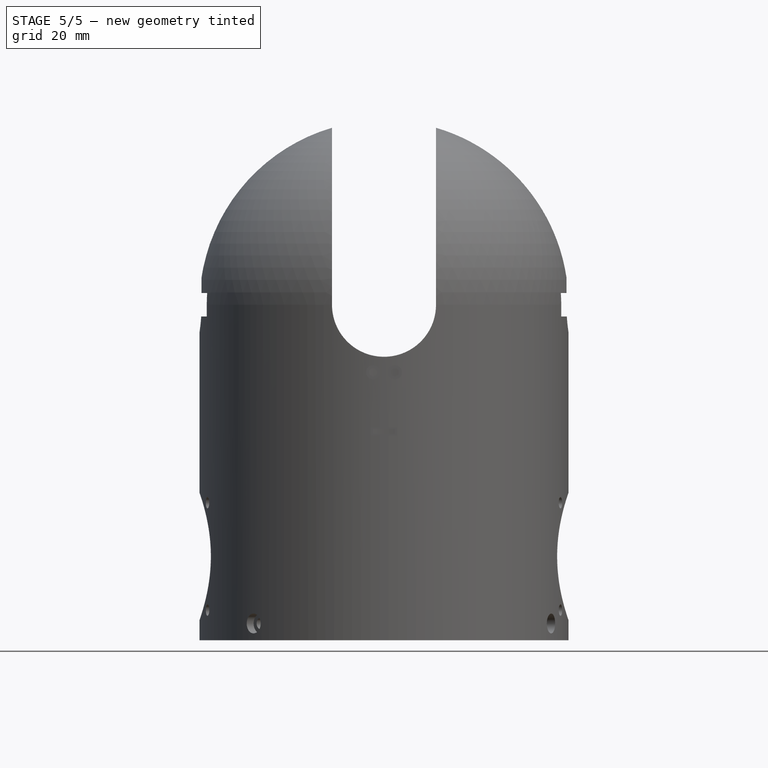
[diagram: stage 5 of 5 — front view after this stage's code; geometry added in this stage tinted green]
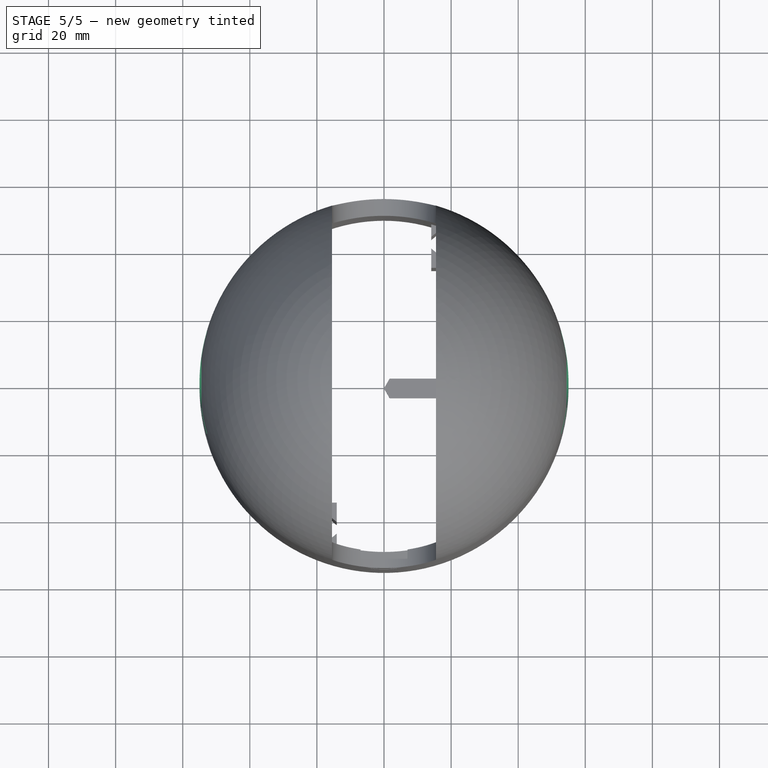
[diagram: stage 5 of 5 — top view after this stage's code; geometry added in this stage tinted green]
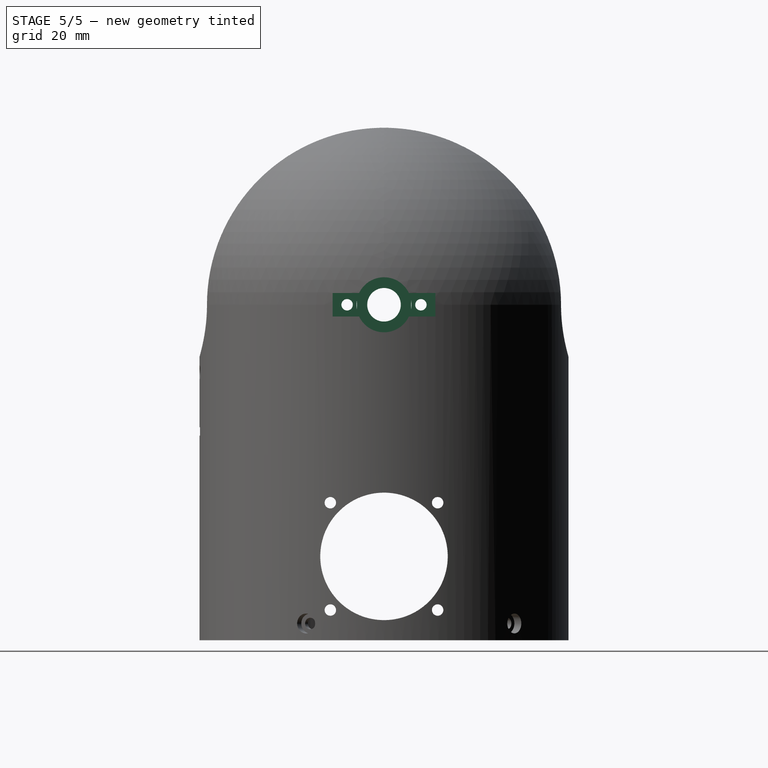
[diagram: stage 5 of 5 — right view after this stage's code; geometry added in this stage tinted green]
FEATURE [Part::MultiFuse] Fusion062  label="Bearing625zzHoles"
  Shapes = -> [Clone140,Clone139,Box251,Clone137,Clone138,Cylinder1015,Clone136]
FEATURE [Part::FeaturePython] Clone279  label="Clone of Bearing625zzHoles004"  # Draft clone (typed FeaturePython)
  Objects = -> [Fusion062]
  Placement = pos=(-55,0,100) rot=(0.57735,0.57735,0.57735;2.0944rad)
  Scale = (1,1,1)
FEATURE [Part::FeaturePython] Clone280  label="Clone of Bearing625zzHoles005"  # Draft clone (typed FeaturePython)
  Objects = -> [Fusion062]
  Placement = pos=(55,0,100) rot=(0.57735,0.57735,-0.57735;4.18879rad)
  Scale = (1,1,1)
FEATURE [Part::MultiFuse] Fusion096
  Shapes = -> [Clone280,Clone279]
FEATURE [Part::Cut] Cut082  label="Cut156"
  Base = -> Fusion097
  Tool = -> Fusion096
FEATURE [Part::MultiFuse] Fusion098
  Shapes = -> [Cut082,Pad036]
FEATURE [Part::Cut] Cut083  label="Cut157"
  Base = -> Fusion098
  Tool = -> Pad037
FEATURE [Part::Cut] Cut084  label="Cut158"
  Base = -> Cut083
  Tool = -> Pad038
FEATURE [Part::Cut] Cut085  label="Cut170"
  Base = -> Cut084
  Tool = -> Fusion099
FEATURE [Part::Cut] Cut143  label="Cut176"
  Base = -> Cut085
  Tool = -> Fusion164
FEATURE [Part::Cut] Cut148  label="Cut177"
  Base = -> Cut143
  Tool = -> Fusion168
FEATURE [Part::Cut] Cut  label="Art4Body"
  Base = -> Cut148
  Tool = -> Fusion170
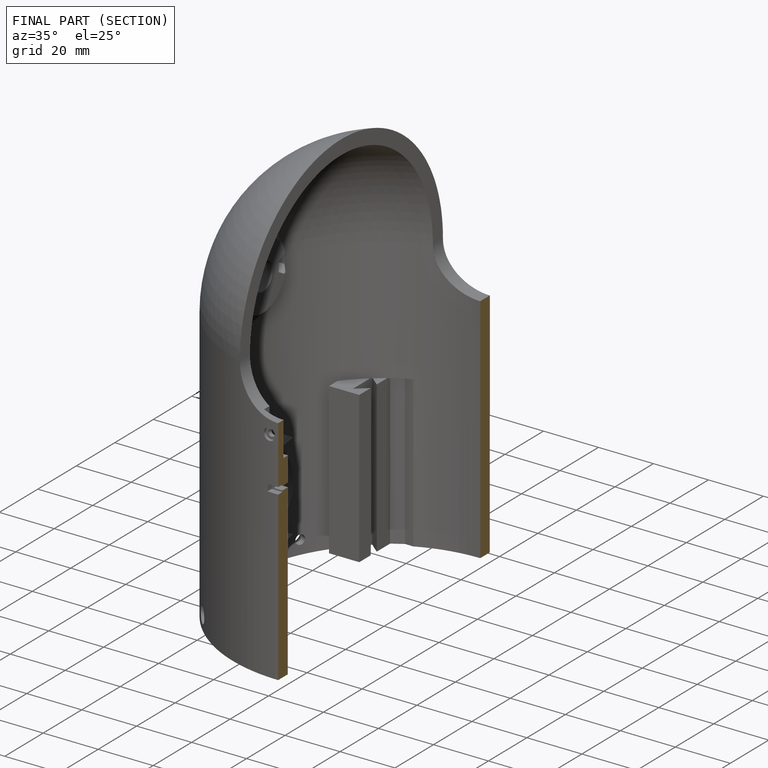
[diagram: finished part — half-section view (interior)]
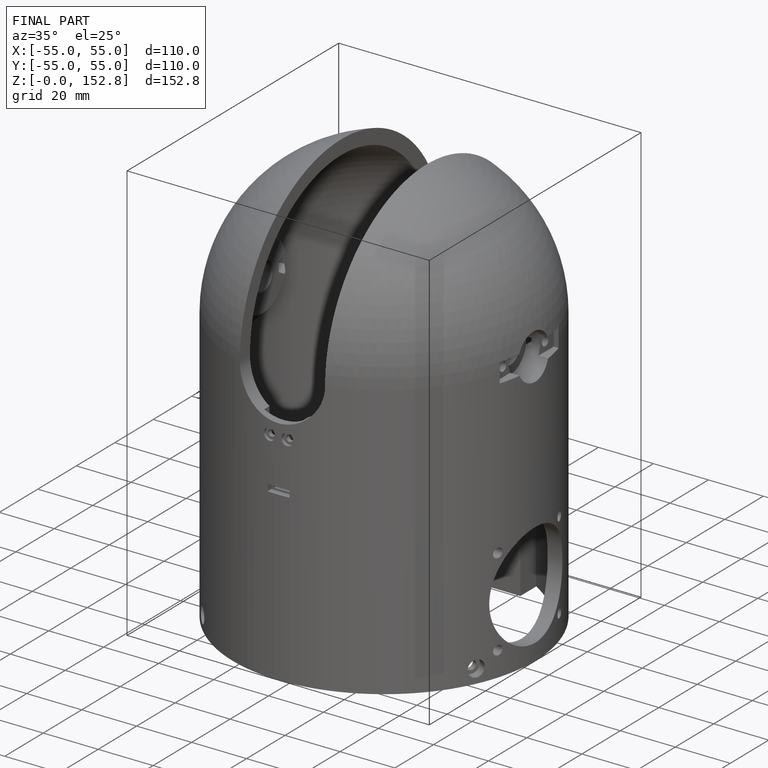
[diagram: finished part — iso view with bounding-box wireframe]
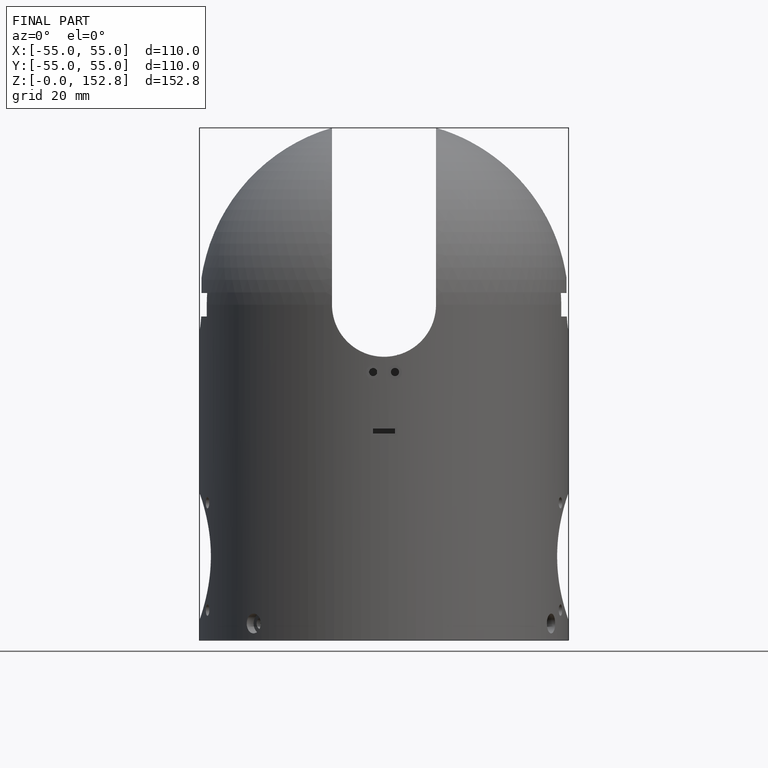
[diagram: finished part — front view with bounding-box wireframe]
